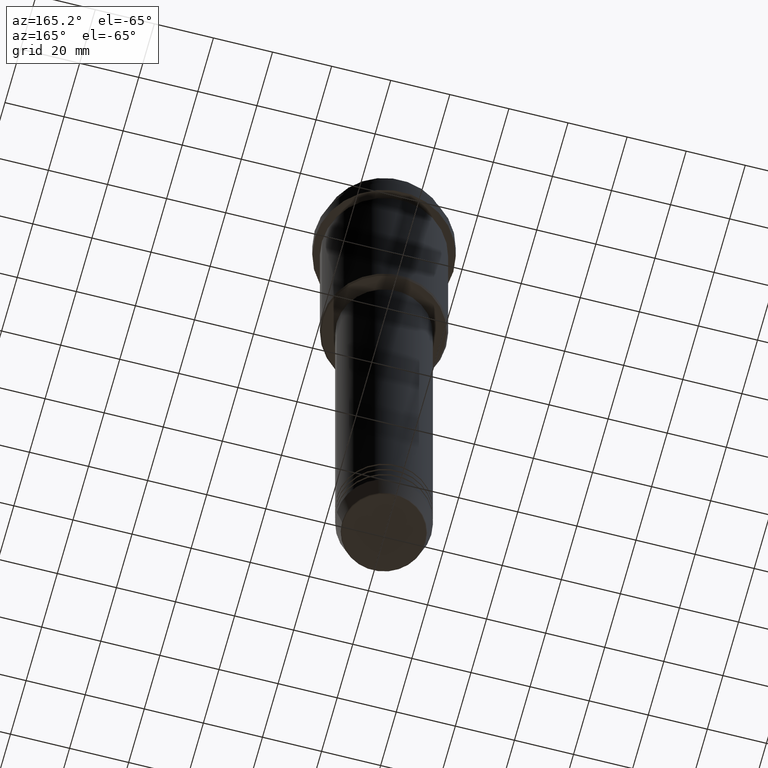
[diagram: clean part render]
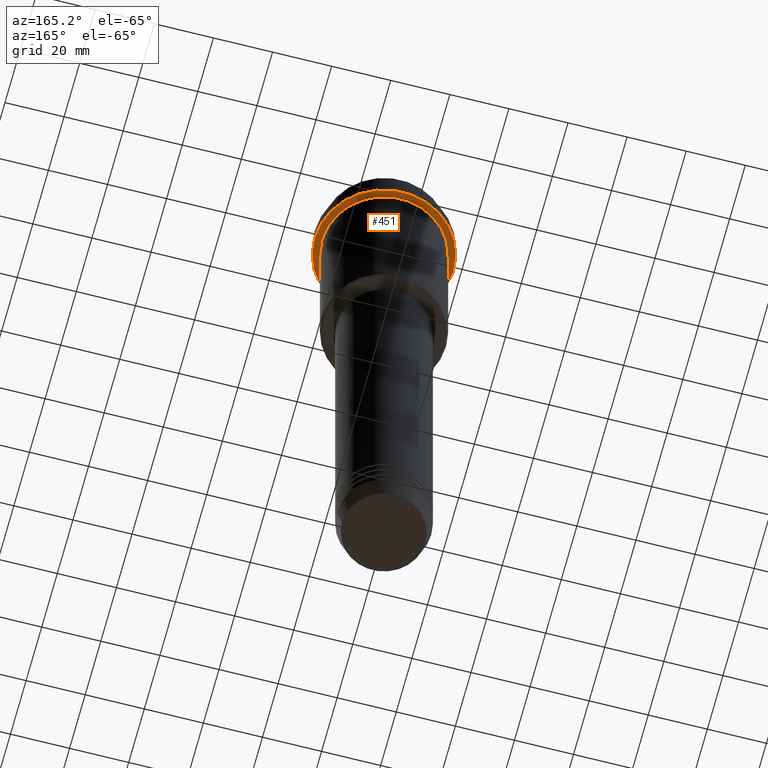
[diagram: same view with one face highlighted and labeled with its STEP entity id]
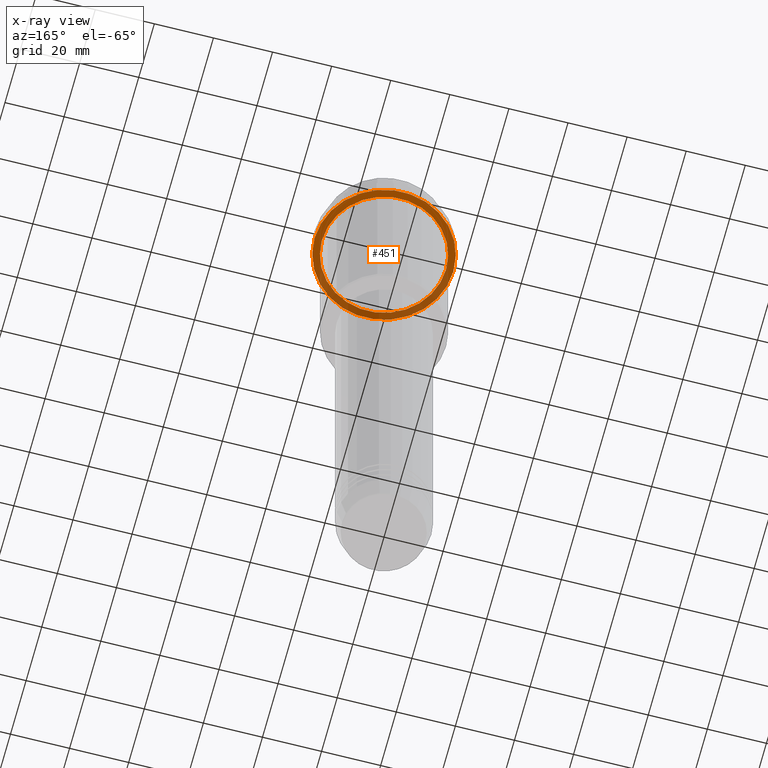
[diagram: x-ray of the same camera — body ghosted, the highlighted face saturated]
A machine part, auxiliary view. The second image highlights one B-rep face of the part: STEP entity #451.
The next image is the same camera in x-ray: the body ghosted, the highlighted face saturated — about 39% of this face is hidden behind the body in this view.
In plain terms, the highlighted planar face has unit normal (0, 0, -1).
Its self-contained STEP definition (entity closure, byte-faithful):
#73 = DIRECTION ( 'NONE',  ( 0.000000000000000000, 0.000000000000000000, -1.000000000000000000 ) ) ;
#82 = CARTESIAN_POINT ( 'NONE',  ( 0.000000000000000000, 0.000000000000000000, -15.00000000000000178 ) ) ;
#87 = DIRECTION ( 'NONE',  ( 1.000000000000000000, 0.000000000000000000, 0.000000000000000000 ) ) ;
#289 = FACE_OUTER_BOUND ( 'NONE', #1373, .T. ) ;
#324 = DIRECTION ( 'NONE',  ( 1.000000000000000000, 0.000000000000000000, 0.000000000000000000 ) ) ;
#398 = CIRCLE ( 'NONE', #1181, 23.50000000000000355 ) ;
#403 = EDGE_CURVE ( 'NONE', #1392, #1360, #398, .T. ) ;
#421 = EDGE_CURVE ( 'NONE', #1021, #778, #1214, .T. ) ;
#442 = CARTESIAN_POINT ( 'NONE',  ( -20.99999999999999289, 0.000000000000000000, -15.00000000000000178 ) ) ;
#447 = ORIENTED_EDGE ( 'NONE', *, *, #824, .F. ) ;
#451 = ADVANCED_FACE ( 'NONE', ( #628, #289 ), #861, .T. ) ;
#453 = EDGE_LOOP ( 'NONE', ( #535, #488 ) ) ;
#488 = ORIENTED_EDGE ( 'NONE', *, *, #1036, .T. ) ;
#525 = DIRECTION ( 'NONE',  ( -0.000000000000000000, -0.000000000000000000, 1.000000000000000000 ) ) ;
#535 = ORIENTED_EDGE ( 'NONE', *, *, #421, .T. ) ;
#543 = CARTESIAN_POINT ( 'NONE',  ( 20.99999999999999289, 2.571758278209440872E-15, -15.00000000000000178 ) ) ;
#563 = CARTESIAN_POINT ( 'NONE',  ( 0.000000000000000000, 0.000000000000000000, -15.00000000000000178 ) ) ;
#628 = FACE_BOUND ( 'NONE', #453, .T. ) ;
#756 = DIRECTION ( 'NONE',  ( -0.000000000000000000, -0.000000000000000000, 1.000000000000000000 ) ) ;
#771 = CARTESIAN_POINT ( 'NONE',  ( 0.000000000000000000, 0.000000000000000000, -15.00000000000000178 ) ) ;
#778 = VERTEX_POINT ( 'NONE', #543 ) ;
#809 = AXIS2_PLACEMENT_3D ( 'NONE', #82, #525, #1393 ) ;
#824 = EDGE_CURVE ( 'NONE', #1360, #1392, #1287, .T. ) ;
#861 = PLANE ( 'NONE',  #978 ) ;
#939 = CARTESIAN_POINT ( 'NONE',  ( 0.000000000000000000, 0.000000000000000000, -15.00000000000000178 ) ) ;
#958 = CIRCLE ( 'NONE', #1003, 20.99999999999999289 ) ;
#978 = AXIS2_PLACEMENT_3D ( 'NONE', #1273, #73, #1291 ) ;
#1003 = AXIS2_PLACEMENT_3D ( 'NONE', #939, #1227, #1129 ) ;
#1021 = VERTEX_POINT ( 'NONE', #442 ) ;
#1036 = EDGE_CURVE ( 'NONE', #778, #1021, #958, .T. ) ;
#1075 = CARTESIAN_POINT ( 'NONE',  ( 23.50000000000000355, 0.000000000000000000, -15.00000000000000178 ) ) ;
#1112 = AXIS2_PLACEMENT_3D ( 'NONE', #771, #756, #87 ) ;
#1129 = DIRECTION ( 'NONE',  ( -1.000000000000000000, 0.000000000000000000, 0.000000000000000000 ) ) ;
#1181 = AXIS2_PLACEMENT_3D ( 'NONE', #563, #1314, #324 ) ;
#1198 = ORIENTED_EDGE ( 'NONE', *, *, #403, .F. ) ;
#1214 = CIRCLE ( 'NONE', #809, 20.99999999999999289 ) ;
#1227 = DIRECTION ( 'NONE',  ( -0.000000000000000000, -0.000000000000000000, 1.000000000000000000 ) ) ;
#1273 = CARTESIAN_POINT ( 'NONE',  ( 0.000000000000000000, 23.50000000000000355, -15.00000000000000178 ) ) ;
#1287 = CIRCLE ( 'NONE', #1112, 23.50000000000000355 ) ;
#1291 = DIRECTION ( 'NONE',  ( -1.000000000000000000, 0.000000000000000000, -0.000000000000000000 ) ) ;
#1295 = CARTESIAN_POINT ( 'NONE',  ( -23.50000000000000711, 2.877919977996281109E-15, -15.00000000000000178 ) ) ;
#1314 = DIRECTION ( 'NONE',  ( -0.000000000000000000, -0.000000000000000000, 1.000000000000000000 ) ) ;
#1360 = VERTEX_POINT ( 'NONE', #1075 ) ;
#1373 = EDGE_LOOP ( 'NONE', ( #447, #1198 ) ) ;
#1392 = VERTEX_POINT ( 'NONE', #1295 ) ;
#1393 = DIRECTION ( 'NONE',  ( -1.000000000000000000, 0.000000000000000000, 0.000000000000000000 ) ) ;